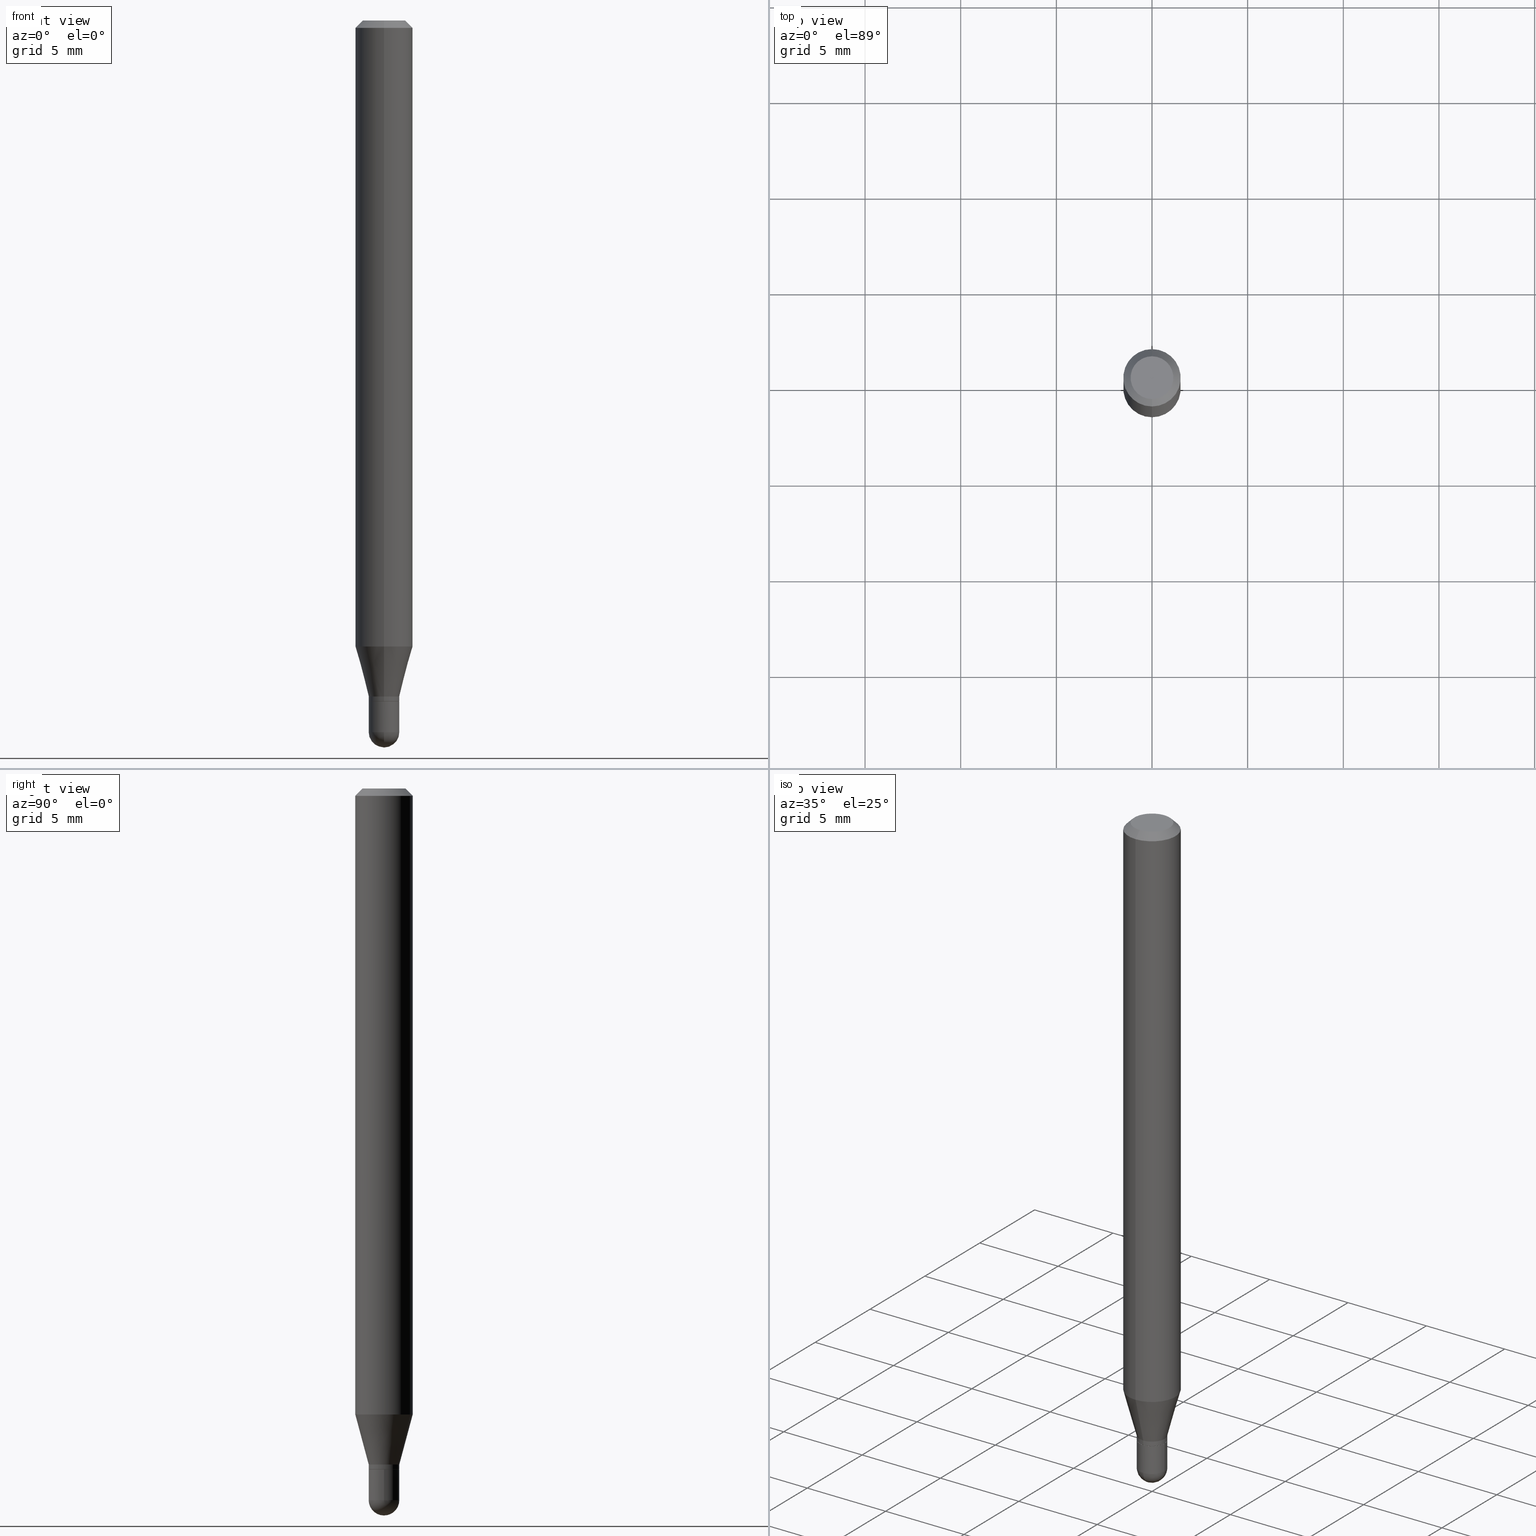
[diagram: canonical four-view strip — front | top / right | iso, engineering-drawing reading convention]
A machine part, canonical four-view strip (front | top / right | iso — engineering-drawing reading convention). The complete STEP part file that produces these views, byte-faithful:
ISO-10303-21;
HEADER;
FILE_DESCRIPTION (( 'STEP AP203' ),
    '1' );
FILE_NAME ('01911.STEP',
    '2024-03-07T19:43:44',
    ( '' ),
    ( '' ),
    'SwSTEP 2.0',
    'SolidWorks 2023',
    '' );
FILE_SCHEMA (( 'CONFIG_CONTROL_DESIGN' ));
ENDSEC;

DATA;
#1 = DATE_AND_TIME ( #427, #207 ) ;
#2 = EDGE_CURVE ( 'NONE', #364, #395, #454, .T. ) ;
#3 = DIRECTION ( 'NONE',  ( -2.445497261081806566E-29, 3.491440589811561722E-15, 1.000000000000000000 ) ) ;
#4 = ORIENTED_EDGE ( 'NONE', *, *, #450, .F. ) ;
#5 = AXIS2_PLACEMENT_3D ( 'NONE', #370, #448, #98 ) ;
#6 = EDGE_LOOP ( 'NONE', ( #215, #486, #161, #17 ) ) ;
#7 = APPROVAL_ROLE ( '' ) ;
#8 = CARTESIAN_POINT ( 'NONE',  ( 3.668245891622715664E-31, -5.237160884717351433E-17, -0.01500000000000002373 ) ) ;
#9 = EDGE_LOOP ( 'NONE', ( #100, #488, #345, #400 ) ) ;
#10 = COORDINATED_UNIVERSAL_TIME_OFFSET ( 5, 0, .BEHIND. ) ;
#11 = FACE_OUTER_BOUND ( 'NONE', #209, .T. ) ;
#12 = EDGE_LOOP ( 'NONE', ( #78, #297, #221, #91, #369 ) ) ;
#13 = VECTOR ( 'NONE', #75, 39.37007874015748854 ) ;
#14 = VECTOR ( 'NONE', #459, 39.37007874015748143 ) ;
#15 = VERTEX_POINT ( 'NONE', #24 ) ;
#16 = APPROVAL ( #393, 'UNSPECIFIED' ) ;
#17 = ORIENTED_EDGE ( 'NONE', *, *, #471, .F. ) ;
#18 = CC_DESIGN_PERSON_AND_ORGANIZATION_ASSIGNMENT ( #492, #179, ( #72 ) ) ;
#19 = AXIS2_PLACEMENT_3D ( 'NONE', #263, #383, #348 ) ;
#20 = CARTESIAN_POINT ( 'NONE',  ( -2.164718430082399417E-16, -0.03100000000000489170, -1.401599999999999957 ) ) ;
#21 = CARTESIAN_POINT ( 'NONE',  ( 3.401931239890901450E-29, -4.856943004486863182E-15, -1.391099999999999781 ) ) ;
#22 = LINE ( 'NONE', #99, #490 ) ;
#23 = DESIGN_CONTEXT ( 'detailed design', #287, 'design' ) ;
#24 = CARTESIAN_POINT ( 'NONE',  ( -4.123439461173736383E-16, -0.05905000000000005383, -0.01499999999999981730 ) ) ;
#25 = COORDINATED_UNIVERSAL_TIME_OFFSET ( 5, 0, .BEHIND. ) ;
#26 = VECTOR ( 'NONE', #191, 39.37007874015748143 ) ;
#27 = DIRECTION ( 'NONE',  ( -6.982962677686265922E-15, -1.000000000000000000, 3.491440589811561328E-15 ) ) ;
#28 = AXIS2_PLACEMENT_3D ( 'NONE', #284, #436, #493 ) ;
#29 = EDGE_CURVE ( 'NONE', #367, #110, #22, .T. ) ;
#30 = CARTESIAN_POINT ( 'NONE',  ( 3.599717260347271507E-16, 0.04404999999999999888, -1.776619958574267450E-16 ) ) ;
#31 = DIRECTION ( 'NONE',  ( -6.982962677686265922E-15, -1.000000000000000000, 0.000000000000000000 ) ) ;
#32 = DIRECTION ( 'NONE',  ( -6.982962677686265922E-15, -1.000000000000000000, 4.626330217890369336E-15 ) ) ;
#33 = DIRECTION ( 'NONE',  ( -6.982962677686265922E-15, -1.000000000000000000, 3.491440589811561328E-15 ) ) ;
#34 = ADVANCED_FACE ( 'NONE', ( #458 ), #182, .T. ) ;
#35 = CARTESIAN_POINT ( 'NONE',  ( 3.427608961132260136E-29, -4.893603130679885204E-15, -1.401599999999999957 ) ) ;
#36 = DIRECTION ( 'NONE',  ( 5.024295867788190974E-15, 0.7071067811865681119, 0.7071067811865270336 ) ) ;
#37 =( GEOMETRIC_REPRESENTATION_CONTEXT ( 3 ) GLOBAL_UNCERTAINTY_ASSIGNED_CONTEXT ( ( #189 ) ) GLOBAL_UNIT_ASSIGNED_CONTEXT ( ( #81, #431, #303 ) ) REPRESENTATION_CONTEXT ( 'NONE', 'WORKASPACE' ) );
#38 = DIRECTION ( 'NONE',  ( 1.000000000000000000, -7.105427357601001070E-15, 4.926315508542082329E-29 ) ) ;
#39 = CARTESIAN_POINT ( 'NONE',  ( 3.426386212501719566E-29, -4.891857410384979356E-15, -1.401100000000000012 ) ) ;
#40 = PERSON_AND_ORGANIZATION ( #267, #302 ) ;
#41 = DIRECTION ( 'NONE',  ( -6.982962677686265133E-15, -1.000000000000000000, 3.491440589811561722E-15 ) ) ;
#42 = DIRECTION ( 'NONE',  ( -6.982962677686265922E-15, -1.000000000000000000, 0.000000000000000000 ) ) ;
#43 = ORIENTED_EDGE ( 'NONE', *, *, #118, .T. ) ;
#44 = VECTOR ( 'NONE', #151, 39.37007874015748143 ) ;
#45 = EDGE_CURVE ( 'NONE', #115, #307, #464, .T. ) ;
#46 = CARTESIAN_POINT ( 'NONE',  ( 0.000000000000000000, 0.000000000000000000, 0.000000000000000000 ) ) ;
#47 = EDGE_LOOP ( 'NONE', ( #248, #43, #167, #261 ) ) ;
#48 = SPHERICAL_SURFACE ( 'NONE', #193, 0.03149999999999982675 ) ;
#49 = DIRECTION ( 'NONE',  ( -2.445497261081806566E-29, 3.491440589811561722E-15, 1.000000000000000000 ) ) ;
#50 = ORIENTED_EDGE ( 'NONE', *, *, #487, .T. ) ;
#51 = APPROVAL_ROLE ( '' ) ;
#52 = EDGE_CURVE ( 'NONE', #307, #115, #135, .T. ) ;
#53 = ORIENTED_EDGE ( 'NONE', *, *, #462, .F. ) ;
#54 = CARTESIAN_POINT ( 'NONE',  ( 3.578939839727836152E-29, -5.117481206286984227E-15, -1.464599999999999902 ) ) ;
#55 = AXIS2_PLACEMENT_3D ( 'NONE', #8, #204, #480 ) ;
#56 = ORIENTED_EDGE ( 'NONE', *, *, #118, .F. ) ;
#57 = ORIENTED_EDGE ( 'NONE', *, *, #52, .T. ) ;
#58 = EDGE_CURVE ( 'NONE', #375, #15, #185, .T. ) ;
#59 = APPLICATION_PROTOCOL_DEFINITION ( 'international standard', 'config_control_design', 1994, #287 ) ;
#60 = CC_DESIGN_SECURITY_CLASSIFICATION ( #136, ( #406 ) ) ;
#61 = PLANE ( 'NONE',  #74 ) ;
#62 = ORIENTED_EDGE ( 'NONE', *, *, #487, .F. ) ;
#63 = DIRECTION ( 'NONE',  ( 7.105427357601001859E-15, 1.000000000000000000, 0.000000000000000000 ) ) ;
#64 = AXIS2_PLACEMENT_3D ( 'NONE', #350, #317, #33 ) ;
#65 = APPROVAL_PERSON_ORGANIZATION ( #438, #409, #51 ) ;
#66 = DIRECTION ( 'NONE',  ( -2.445497261081806566E-29, 3.491440589811561722E-15, 1.000000000000000000 ) ) ;
#67 = ADVANCED_FACE ( 'NONE', ( #286 ), #387, .T. ) ;
#68 = DIRECTION ( 'NONE',  ( -2.445497261081806286E-29, 3.491440589811561722E-15, 1.000000000000000000 ) ) ;
#69 = DIRECTION ( 'NONE',  ( -2.445497261081806566E-29, 3.491440589811561722E-15, 1.000000000000000000 ) ) ;
#70 = ORIENTED_EDGE ( 'NONE', *, *, #376, .T. ) ;
#71 = CARTESIAN_POINT ( 'NONE',  ( -2.164718430082399417E-16, -0.03100000000000489170, -1.401599999999999957 ) ) ;
#72 = PRODUCT ( '01911', '01911', '', ( #496 ) ) ;
#73 = DIRECTION ( 'NONE',  ( -2.445468806185136597E-29, 3.491481338843145583E-15, 1.000000000000000000 ) ) ;
#74 = AXIS2_PLACEMENT_3D ( 'NONE', #411, #469, #377 ) ;
#75 = DIRECTION ( 'NONE',  ( -1.807323732225331323E-15, -0.2588190451025183525, 0.9659258262890689783 ) ) ;
#76 = APPROVAL_DATE_TIME ( #1, #409 ) ;
#77 = FACE_OUTER_BOUND ( 'NONE', #304, .T. ) ;
#78 = ORIENTED_EDGE ( 'NONE', *, *, #452, .T. ) ;
#79 = EDGE_CURVE ( 'NONE', #252, #15, #228, .T. ) ;
#80 = DATE_AND_TIME ( #479, #285 ) ;
#81 =( CONVERSION_BASED_UNIT ( 'INCH', #251 ) LENGTH_UNIT ( ) NAMED_UNIT ( #194 ) );
#82 = DIRECTION ( 'NONE',  ( -6.982962677686265922E-15, -1.000000000000000000, 0.000000000000000000 ) ) ;
#83 = ORIENTED_EDGE ( 'NONE', *, *, #45, .T. ) ;
#84 = DATE_AND_TIME ( #288, #266 ) ;
#85 = CONICAL_SURFACE ( 'NONE', #293, 0.03099999999999999978, 0.7853981633974739252 ) ;
#86 = CARTESIAN_POINT ( 'NONE',  ( 3.427608961132260136E-29, -4.893603130679885204E-15, -1.401599999999999957 ) ) ;
#87 = ORIENTED_EDGE ( 'NONE', *, *, #447, .F. ) ;
#88 = APPROVAL_STATUS ( 'not_yet_approved' ) ;
#89 = EDGE_CURVE ( 'NONE', #307, #252, #353, .T. ) ;
#90 = DIRECTION ( 'NONE',  ( -2.445497261081806566E-29, 3.491440589811561722E-15, 1.000000000000000000 ) ) ;
#91 = ORIENTED_EDGE ( 'NONE', *, *, #484, .F. ) ;
#92 = DIRECTION ( 'NONE',  ( -2.445468806185136597E-29, 3.491481338843145583E-15, 1.000000000000000000 ) ) ;
#93 = EDGE_LOOP ( 'NONE', ( #231, #210, #70, #334 ) ) ;
#94 = CIRCLE ( 'NONE', #378, 0.03150000000000000716 ) ;
#95 = CALENDAR_DATE ( 2024, 7, 3 ) ;
#96 = CIRCLE ( 'NONE', #108, 0.03150000000000000716 ) ;
#97 = ORIENTED_EDGE ( 'NONE', *, *, #89, .T. ) ;
#98 = DIRECTION ( 'NONE',  ( 1.000000000000000000, 0.000000000000000000, 0.000000000000000000 ) ) ;
#99 = CARTESIAN_POINT ( 'NONE',  ( 4.195754854663390985E-16, 0.05904999999999999832, -2.061695668283727093E-16 ) ) ;
#100 = ORIENTED_EDGE ( 'NONE', *, *, #128, .T. ) ;
#101 = VECTOR ( 'NONE', #177, 39.37007874015748143 ) ;
#102 = VECTOR ( 'NONE', #342, 39.37007874015748143 ) ;
#103 = ORIENTED_EDGE ( 'NONE', *, *, #273, .F. ) ;
#104 = ADVANCED_FACE ( 'NONE', ( #425 ), #384, .T. ) ;
#105 = DIRECTION ( 'NONE',  ( 1.000000000000000000, -6.982962677686265922E-15, 4.883557194083112340E-29 ) ) ;
#106 = APPLICATION_CONTEXT ( 'configuration controlled 3d designs of mechanical parts and assemblies' ) ;
#107 = DIRECTION ( 'NONE',  ( -2.445468806185136597E-29, 3.491481338843145583E-15, 1.000000000000000000 ) ) ;
#108 = AXIS2_PLACEMENT_3D ( 'NONE', #316, #232, #154 ) ;
#109 = CARTESIAN_POINT ( 'NONE',  ( 0.000000000000000000, 0.000000000000000000, 0.000000000000000000 ) ) ;
#110 = VERTEX_POINT ( 'NONE', #509 ) ;
#111 = ADVANCED_FACE ( 'NONE', ( #505 ), #239, .T. ) ;
#112 = DATE_AND_TIME ( #95, #123 ) ;
#113 = DIRECTION ( 'NONE',  ( 6.982962677686265922E-15, 1.000000000000000000, -3.491440589811561722E-15 ) ) ;
#114 = DIRECTION ( 'NONE',  ( 1.000000000000000000, -6.982962677686254878E-15, 0.000000000000000000 ) ) ;
#115 = VERTEX_POINT ( 'NONE', #152 ) ;
#116 = CARTESIAN_POINT ( 'NONE',  ( 3.654625220217210352E-29, -5.229391687169200303E-15, -1.496099999999999985 ) ) ;
#117 = DIRECTION ( 'NONE',  ( 2.445497261081806566E-29, -3.491440589811561722E-15, -1.000000000000000000 ) ) ;
#118 = EDGE_CURVE ( 'NONE', #240, #172, #413, .T. ) ;
#119 = DIRECTION ( 'NONE',  ( 2.445497261081806566E-29, -3.491440589811561722E-15, -1.000000000000000000 ) ) ;
#120 = AXIS2_PLACEMENT_3D ( 'NONE', #449, #489, #217 ) ;
#121 = DIRECTION ( 'NONE',  ( 1.000000000000000000, -6.982962677686255667E-15, 0.000000000000000000 ) ) ;
#122 = AXIS2_PLACEMENT_3D ( 'NONE', #269, #105, #142 ) ;
#123 = LOCAL_TIME ( 14, 43, 44.00000000000000000, #25 ) ;
#124 = PRODUCT_DEFINITION ( 'UNKNOWN', '', #406, #23 ) ;
#125 = COORDINATED_UNIVERSAL_TIME_OFFSET ( 5, 0, .BEHIND. ) ;
#126 = ORIENTED_EDGE ( 'NONE', *, *, #351, .F. ) ;
#127 = ORIENTED_EDGE ( 'NONE', *, *, #58, .F. ) ;
#128 = EDGE_CURVE ( 'NONE', #395, #172, #475, .T. ) ;
#129 = PERSON_AND_ORGANIZATION_ROLE ( 'design_supplier' ) ;
#130 = AXIS2_PLACEMENT_3D ( 'NONE', #146, #314, #463 ) ;
#131 = FACE_OUTER_BOUND ( 'NONE', #6, .T. ) ;
#132 = ORIENTED_EDGE ( 'NONE', *, *, #447, .T. ) ;
#133 = ORIENTED_EDGE ( 'NONE', *, *, #462, .T. ) ;
#134 = APPLICATION_PROTOCOL_DEFINITION ( 'international standard', 'config_control_design', 1994, #106 ) ;
#135 = CIRCLE ( 'NONE', #245, 0.03149999999999991696 ) ;
#136 = SECURITY_CLASSIFICATION ( '', '', #354 ) ;
#137 = PRODUCT_RELATED_PRODUCT_CATEGORY ( 'detail', '', ( #72 ) ) ;
#138 = AXIS2_PLACEMENT_3D ( 'NONE', #109, #73, #198 ) ;
#139 = CIRCLE ( 'NONE', #19, 0.03150000000000000022 ) ;
#140 = DIRECTION ( 'NONE',  ( -2.445497261081806286E-29, 3.491440589811561722E-15, 1.000000000000000000 ) ) ;
#141 = APPROVAL_DATE_TIME ( #112, #280 ) ;
#142 = DIRECTION ( 'NONE',  ( -6.982962677686265922E-15, -1.000000000000000000, 0.000000000000000000 ) ) ;
#143 = CARTESIAN_POINT ( 'NONE',  ( -4.051124067684085231E-16, -0.05905000000000005383, -0.01499999999999981730 ) ) ;
#144 = EDGE_CURVE ( 'NONE', #214, #300, #320, .T. ) ;
#145 = DIRECTION ( 'NONE',  ( -6.982962677686265922E-15, -1.000000000000000000, 3.491440589811561722E-15 ) ) ;
#146 = CARTESIAN_POINT ( 'NONE',  ( 3.427608961132260136E-29, -4.893603130679885204E-15, -1.401599999999999957 ) ) ;
#147 = ORIENTED_EDGE ( 'NONE', *, *, #450, .T. ) ;
#148 = AXIS2_PLACEMENT_3D ( 'NONE', #35, #501, #145 ) ;
#149 = CC_DESIGN_APPROVAL ( #280, ( #124 ) ) ;
#150 = CARTESIAN_POINT ( 'NONE',  ( 3.581633613538751591E-29, -5.113623568869670202E-15, -1.464599999999999902 ) ) ;
#151 = DIRECTION ( 'NONE',  ( -2.445497261081806286E-29, 3.491440589811561722E-15, 1.000000000000000000 ) ) ;
#152 = CARTESIAN_POINT ( 'NONE',  ( 3.216982236154178205E-16, 0.03149999999999505973, -1.391099999999999781 ) ) ;
#153 = EDGE_LOOP ( 'NONE', ( #294, #361, #270, #397 ) ) ;
#154 = DIRECTION ( 'NONE',  ( 1.000000000000000000, -6.982962677686254878E-15, 0.000000000000000000 ) ) ;
#155 = CARTESIAN_POINT ( 'NONE',  ( 3.581633613538751591E-29, -5.113623568869670202E-15, -1.464599999999999902 ) ) ;
#156 = CALENDAR_DATE ( 2024, 7, 3 ) ;
#157 = EDGE_CURVE ( 'NONE', #206, #292, #94, .T. ) ;
#158 = FACE_OUTER_BOUND ( 'NONE', #153, .T. ) ;
#159 = CIRCLE ( 'NONE', #339, 0.04404999999999999888 ) ;
#160 =( LENGTH_UNIT ( ) NAMED_UNIT ( * ) SI_UNIT ( $, .METRE. ) );
#161 = ORIENTED_EDGE ( 'NONE', *, *, #157, .F. ) ;
#162 = PERSON_AND_ORGANIZATION ( #267, #302 ) ;
#163 = DIRECTION ( 'NONE',  ( -6.982962677686265922E-15, -1.000000000000000000, 0.000000000000000000 ) ) ;
#164 = ADVANCED_FACE ( 'NONE', ( #502 ), #391, .T. ) ;
#165 = ORIENTED_EDGE ( 'NONE', *, *, #79, .F. ) ;
#166 = DIRECTION ( 'NONE',  ( -6.982962677686265922E-15, -1.000000000000000000, 3.505890868245046092E-15 ) ) ;
#167 = ORIENTED_EDGE ( 'NONE', *, *, #128, .F. ) ;
#168 = CIRCLE ( 'NONE', #415, 0.03149999999999992389 ) ;
#169 = PERSON_AND_ORGANIZATION ( #267, #302 ) ;
#170 = CIRCLE ( 'NONE', #308, 0.05904999999999999832 ) ;
#171 = ORIENTED_EDGE ( 'NONE', *, *, #2, .T. ) ;
#172 = VERTEX_POINT ( 'NONE', #276 ) ;
#173 = EDGE_CURVE ( 'NONE', #364, #240, #222, .T. ) ;
#174 = CARTESIAN_POINT ( 'NONE',  ( 3.150490103115979382E-29, -4.497960066801637033E-15, -1.288282000251477433 ) ) ;
#175 = EDGE_LOOP ( 'NONE', ( #259, #407, #429, #211, #4 ) ) ;
#176 = AXIS2_PLACEMENT_3D ( 'NONE', #155, #470, #114 ) ;
#177 = DIRECTION ( 'NONE',  ( -4.937700262164674260E-15, -0.7071067811865632269, 0.7071067811865319186 ) ) ;
#178 = DIRECTION ( 'NONE',  ( -2.445497261081806566E-29, 3.491440589811561722E-15, 1.000000000000000000 ) ) ;
#179 = PERSON_AND_ORGANIZATION_ROLE ( 'design_owner' ) ;
#180 = ORIENTED_EDGE ( 'NONE', *, *, #399, .T. ) ;
#181 = CC_DESIGN_DATE_AND_TIME_ASSIGNMENT ( #430, #360, ( #124 ) ) ;
#182 = CONICAL_SURFACE ( 'NONE', #120, 0.03149999999999991696, 0.2617993877991504625 ) ;
#183 = CONICAL_SURFACE ( 'NONE', #315, 0.03149999999999991696, 0.2617993877991504625 ) ;
#184 = LINE ( 'NONE', #311, #14 ) ;
#185 = LINE ( 'NONE', #143, #102 ) ;
#186 = FACE_OUTER_BOUND ( 'NONE', #326, .T. ) ;
#187 = DIRECTION ( 'NONE',  ( -2.445468806185136597E-29, 3.491481338843145583E-15, 1.000000000000000000 ) ) ;
#188 = ORIENTED_EDGE ( 'NONE', *, *, #262, .T. ) ;
#189 = UNCERTAINTY_MEASURE_WITH_UNIT (LENGTH_MEASURE( 1.000000000000000082E-05 ), #81, 'distance_accuracy_value', 'NONE');
#190 = CARTESIAN_POINT ( 'NONE',  ( 3.075995059520799729E-16, 0.04404999999999999888, -1.657299769193130162E-16 ) ) ;
#191 = DIRECTION ( 'NONE',  ( -2.445468806185136877E-29, 3.491481338843145188E-15, 1.000000000000000000 ) ) ;
#192 = PLANE ( 'NONE',  #476 ) ;
#193 = AXIS2_PLACEMENT_3D ( 'NONE', #54, #434, #163 ) ;
#194 = DIMENSIONAL_EXPONENTS ( 1.000000000000000000, 0.000000000000000000, 0.000000000000000000, 0.000000000000000000, 0.000000000000000000, 0.000000000000000000, 0.000000000000000000 ) ;
#195 = DIRECTION ( 'NONE',  ( -6.982962677686265922E-15, -1.000000000000000000, 0.000000000000000000 ) ) ;
#196 = ORIENTED_EDGE ( 'NONE', *, *, #414, .F. ) ;
#197 = LINE ( 'NONE', #352, #338 ) ;
#198 = DIRECTION ( 'NONE',  ( 1.000000000000000000, -6.982962677686265133E-15, 4.876176775795935793E-29 ) ) ;
#199 = CC_DESIGN_PERSON_AND_ORGANIZATION_ASSIGNMENT ( #40, #441, ( #124 ) ) ;
#200 = PERSON_AND_ORGANIZATION_ROLE ( 'creator' ) ;
#201 = CARTESIAN_POINT ( 'NONE',  ( 0.03150000000000000022, -5.113623568869669413E-15, -1.401599999999999957 ) ) ;
#202 = EDGE_LOOP ( 'NONE', ( #426, #372 ) ) ;
#203 = SHAPE_DEFINITION_REPRESENTATION ( #401, #443 ) ;
#204 = DIRECTION ( 'NONE',  ( -2.445497261081806566E-29, 3.491440589811561722E-15, 1.000000000000000000 ) ) ;
#205 = AXIS2_PLACEMENT_3D ( 'NONE', #313, #419, #27 ) ;
#206 = VERTEX_POINT ( 'NONE', #347 ) ;
#207 = LOCAL_TIME ( 14, 43, 44.00000000000000000, #331 ) ;
#208 = DIRECTION ( 'NONE',  ( -2.445497261081806566E-29, 3.491440589811561722E-15, 1.000000000000000000 ) ) ;
#209 = EDGE_LOOP ( 'NONE', ( #478, #216, #62, #165 ) ) ;
#210 = ORIENTED_EDGE ( 'NONE', *, *, #257, .T. ) ;
#211 = ORIENTED_EDGE ( 'NONE', *, *, #484, .T. ) ;
#212 = AXIS2_PLACEMENT_3D ( 'NONE', #381, #107, #225 ) ;
#213 = LINE ( 'NONE', #368, #423 ) ;
#214 = VERTEX_POINT ( 'NONE', #468 ) ;
#215 = ORIENTED_EDGE ( 'NONE', *, *, #466, .F. ) ;
#216 = ORIENTED_EDGE ( 'NONE', *, *, #29, .T. ) ;
#217 = DIRECTION ( 'NONE',  ( -6.982962677686266711E-15, -1.000000000000000000, 0.000000000000000000 ) ) ;
#218 = AXIS2_PLACEMENT_3D ( 'NONE', #396, #92, #256 ) ;
#219 = EDGE_CURVE ( 'NONE', #214, #329, #358, .T. ) ;
#220 = DIRECTION ( 'NONE',  ( -2.445497261081806566E-29, 3.491440589811561722E-15, 1.000000000000000000 ) ) ;
#221 = ORIENTED_EDGE ( 'NONE', *, *, #243, .F. ) ;
#222 = CIRCLE ( 'NONE', #130, 0.03099999999999999978 ) ;
#223 = CIRCLE ( 'NONE', #218, 0.03150000000000000716 ) ;
#224 = CYLINDRICAL_SURFACE ( 'NONE', #205, 0.03149999999999992389 ) ;
#225 = DIRECTION ( 'NONE',  ( 1.000000000000000000, -6.982962677686265133E-15, 4.876176775795935793E-29 ) ) ;
#226 = DIRECTION ( 'NONE',  ( -2.445497261081806566E-29, 3.491440589811561722E-15, 1.000000000000000000 ) ) ;
#227 = ADVANCED_FACE ( 'NONE', ( #278 ), #456, .T. ) ;
#228 = LINE ( 'NONE', #422, #233 ) ;
#229 = CARTESIAN_POINT ( 'NONE',  ( 2.238209617644309685E-16, 0.03149999999999992389, -1.099803785790639197E-16 ) ) ;
#230 = DIRECTION ( 'NONE',  ( -2.445497261081806286E-29, 3.491440589811561722E-15, 1.000000000000000000 ) ) ;
#231 = ORIENTED_EDGE ( 'NONE', *, *, #382, .F. ) ;
#232 = DIRECTION ( 'NONE',  ( -2.445468806185136597E-29, 3.491481338843145583E-15, 1.000000000000000000 ) ) ;
#233 = VECTOR ( 'NONE', #230, 39.37007874015748143 ) ;
#234 = AXIS2_PLACEMENT_3D ( 'NONE', #282, #238, #121 ) ;
#235 = CC_DESIGN_PERSON_AND_ORGANIZATION_ASSIGNMENT ( #398, #253, ( #136 ) ) ;
#236 = CARTESIAN_POINT ( 'NONE',  ( 3.578939839727836152E-29, -5.117481206286984227E-15, -1.464599999999999902 ) ) ;
#237 = LOCAL_TIME ( 14, 43, 44.00000000000000000, #125 ) ;
#238 = DIRECTION ( 'NONE',  ( -2.445468806185136597E-29, 3.491481338843145583E-15, 1.000000000000000000 ) ) ;
#239 = CYLINDRICAL_SURFACE ( 'NONE', #212, 0.03150000000000000716 ) ;
#240 = VERTEX_POINT ( 'NONE', #473 ) ;
#241 = DIRECTION ( 'NONE',  ( -2.445468806185136877E-29, 3.491481338843145188E-15, 1.000000000000000000 ) ) ;
#242 = ORIENTED_EDGE ( 'NONE', *, *, #399, .F. ) ;
#243 = EDGE_CURVE ( 'NONE', #290, #300, #405, .T. ) ;
#244 = DIRECTION ( 'NONE',  ( -1.000000000000000000, 6.982962677686265922E-15, -4.883557194083112340E-29 ) ) ;
#245 = AXIS2_PLACEMENT_3D ( 'NONE', #457, #69, #500 ) ;
#246 = CARTESIAN_POINT ( 'NONE',  ( -0.03150000000000000022, -4.779820944931679381E-15, -1.401599999999999957 ) ) ;
#247 = CIRCLE ( 'NONE', #55, 0.05904999999999999832 ) ;
#248 = ORIENTED_EDGE ( 'NONE', *, *, #173, .T. ) ;
#249 = APPROVAL_PERSON_ORGANIZATION ( #374, #280, #410 ) ;
#250 = COORDINATED_UNIVERSAL_TIME_OFFSET ( 5, 0, .BEHIND. ) ;
#251 = LENGTH_MEASURE_WITH_UNIT ( LENGTH_MEASURE( 0.02539999999999999897 ), #160 );
#252 = VERTEX_POINT ( 'NONE', #390 ) ;
#253 = PERSON_AND_ORGANIZATION_ROLE ( 'classification_officer' ) ;
#254 = CARTESIAN_POINT ( 'NONE',  ( 2.238209617644667630E-16, 0.03149999999999480299, -1.464599999999999902 ) ) ;
#255 = EDGE_LOOP ( 'NONE', ( #333, #132, #503, #53 ) ) ;
#256 = DIRECTION ( 'NONE',  ( 1.000000000000000000, -6.982962677686254878E-15, 0.000000000000000000 ) ) ;
#257 = EDGE_CURVE ( 'NONE', #172, #395, #168, .T. ) ;
#258 = CYLINDRICAL_SURFACE ( 'NONE', #388, 0.05904999999999999832 ) ;
#259 = ORIENTED_EDGE ( 'NONE', *, *, #144, .F. ) ;
#260 = AXIS2_PLACEMENT_3D ( 'NONE', #418, #66, #195 ) ;
#261 = ORIENTED_EDGE ( 'NONE', *, *, #2, .F. ) ;
#262 = EDGE_CURVE ( 'NONE', #240, #364, #491, .T. ) ;
#263 = CARTESIAN_POINT ( 'NONE',  ( 3.427569078749087191E-29, -4.893660244522552864E-15, -1.401599999999999957 ) ) ;
#264 = AXIS2_PLACEMENT_3D ( 'NONE', #21, #178, #495 ) ;
#265 = CONICAL_SURFACE ( 'NONE', #324, 0.05904999999999999832, 0.7853981633974483900 ) ;
#266 = LOCAL_TIME ( 14, 43, 44.00000000000000000, #10 ) ;
#267 = PERSON ( 'UNSPECIFIED', 'UNSPECIFIED', 'UNSPECIFIED', ('UNSPECIFIED'), ('UNSPECIFIED'), ('UNSPECIFIED') ) ;
#268 = APPROVAL_STATUS ( 'not_yet_approved' ) ;
#269 = CARTESIAN_POINT ( 'NONE',  ( 3.578939839727836152E-29, -5.117481206286984227E-15, -1.464599999999999902 ) ) ;
#270 = ORIENTED_EDGE ( 'NONE', *, *, #219, .F. ) ;
#271 = CARTESIAN_POINT ( 'NONE',  ( 3.427608961132260136E-29, -4.893603130679885204E-15, -1.401599999999999957 ) ) ;
#272 = VECTOR ( 'NONE', #68, 39.37007874015748143 ) ;
#273 = EDGE_CURVE ( 'NONE', #356, #375, #159, .T. ) ;
#274 = CC_DESIGN_APPROVAL ( #409, ( #136 ) ) ;
#275 = CARTESIAN_POINT ( 'NONE',  ( 3.401931239890901450E-29, -4.856943004486863182E-15, -1.391099999999999781 ) ) ;
#276 = CARTESIAN_POINT ( 'NONE',  ( 2.238209617644644458E-16, 0.03149999999999492789, -1.401100000000000012 ) ) ;
#277 = CARTESIAN_POINT ( 'NONE',  ( -2.199633243470810260E-16, -0.03150000000000503786, -1.464599999999999902 ) ) ;
#278 = FACE_OUTER_BOUND ( 'NONE', #306, .T. ) ;
#279 = ORIENTED_EDGE ( 'NONE', *, *, #243, .T. ) ;
#280 = APPROVAL ( #268, 'UNSPECIFIED' ) ;
#281 = DIRECTION ( 'NONE',  ( 6.982962677686265922E-15, 1.000000000000000000, -3.505890868245046092E-15 ) ) ;
#282 = CARTESIAN_POINT ( 'NONE',  ( 3.427569078749087191E-29, -4.893660244522552864E-15, -1.401599999999999957 ) ) ;
#283 = AXIS2_PLACEMENT_3D ( 'NONE', #86, #363, #299 ) ;
#284 = CARTESIAN_POINT ( 'NONE',  ( 5.835943926466671869E-46, -8.331987047786100818E-32, -2.386403787622744840E-17 ) ) ;
#285 = LOCAL_TIME ( 14, 43, 44.00000000000000000, #250 ) ;
#286 = FACE_OUTER_BOUND ( 'NONE', #47, .T. ) ;
#287 = APPLICATION_CONTEXT ( 'configuration controlled 3d designs of mechanical parts and assemblies' ) ;
#288 = CALENDAR_DATE ( 2024, 7, 3 ) ;
#289 = CYLINDRICAL_SURFACE ( 'NONE', #507, 0.05904999999999999832 ) ;
#290 = VERTEX_POINT ( 'NONE', #201 ) ;
#291 = DIRECTION ( 'NONE',  ( 1.839019923739601499E-15, 0.2588190451025251249, 0.9659258262890670910 ) ) ;
#292 = VERTEX_POINT ( 'NONE', #254 ) ;
#293 = AXIS2_PLACEMENT_3D ( 'NONE', #394, #208, #42 ) ;
#294 = ORIENTED_EDGE ( 'NONE', *, *, #335, .F. ) ;
#295 = DATE_TIME_ROLE ( 'classification_date' ) ;
#296 = DIRECTION ( 'NONE',  ( -6.982962677686265922E-15, -1.000000000000000000, 3.491440589811561722E-15 ) ) ;
#297 = ORIENTED_EDGE ( 'NONE', *, *, #144, .T. ) ;
#298 = ADVANCED_FACE ( 'NONE', ( #355 ), #258, .T. ) ;
#299 = DIRECTION ( 'NONE',  ( -6.982962677686265922E-15, -1.000000000000000000, 0.000000000000000000 ) ) ;
#300 = VERTEX_POINT ( 'NONE', #246 ) ;
#301 = CIRCLE ( 'NONE', #446, 0.05904999999999999832 ) ;
#302 = ORGANIZATION ( 'UNSPECIFIED', 'UNSPECIFIED', '' ) ;
#303 =( NAMED_UNIT ( * ) SI_UNIT ( $, .STERADIAN. ) SOLID_ANGLE_UNIT ( ) );
#304 = EDGE_LOOP ( 'NONE', ( #56, #188, #171, #440 ) ) ;
#305 = CC_DESIGN_PERSON_AND_ORGANIZATION_ASSIGNMENT ( #169, #200, ( #406 ) ) ;
#306 = EDGE_LOOP ( 'NONE', ( #127, #103, #510, #133 ) ) ;
#307 = VERTEX_POINT ( 'NONE', #366 ) ;
#308 = AXIS2_PLACEMENT_3D ( 'NONE', #174, #220, #336 ) ;
#309 = CC_DESIGN_APPROVAL ( #16, ( #406 ) ) ;
#310 = ADVANCED_FACE ( 'NONE', ( #158 ), #341, .T. ) ;
#311 = CARTESIAN_POINT ( 'NONE',  ( 4.123439461173743285E-16, 0.05904999999999994975, -0.01500000000000023016 ) ) ;
#312 = DIRECTION ( 'NONE',  ( -2.445497261081806566E-29, 3.491440589811561722E-15, 1.000000000000000000 ) ) ;
#313 = CARTESIAN_POINT ( 'NONE',  ( 0.000000000000000000, 0.000000000000000000, 0.000000000000000000 ) ) ;
#314 = DIRECTION ( 'NONE',  ( -2.445497261081806566E-29, 3.491440589811561722E-15, 1.000000000000000000 ) ) ;
#315 = AXIS2_PLACEMENT_3D ( 'NONE', #275, #226, #472 ) ;
#316 = CARTESIAN_POINT ( 'NONE',  ( 3.581633613538751591E-29, -5.113623568869670202E-15, -1.464599999999999902 ) ) ;
#317 = DIRECTION ( 'NONE',  ( -2.445497261081806566E-29, 3.491440589811561722E-15, 1.000000000000000000 ) ) ;
#318 = ADVANCED_FACE ( 'NONE', ( #499 ), #183, .T. ) ;
#319 = CARTESIAN_POINT ( 'NONE',  ( 3.668245891622715664E-31, -5.237160884717351433E-17, -0.01500000000000002373 ) ) ;
#320 = LINE ( 'NONE', #386, #26 ) ;
#321 = CARTESIAN_POINT ( 'NONE',  ( 3.668245891622715664E-31, -5.237160884717351433E-17, -0.01500000000000002373 ) ) ;
#322 = FACE_OUTER_BOUND ( 'NONE', #93, .T. ) ;
#323 = CARTESIAN_POINT ( 'NONE',  ( 3.668245891622715664E-31, -5.237160884717351433E-17, -0.01500000000000002373 ) ) ;
#324 = AXIS2_PLACEMENT_3D ( 'NONE', #319, #117, #281 ) ;
#325 = EDGE_LOOP ( 'NONE', ( #196, #432, #50, #126 ) ) ;
#326 = EDGE_LOOP ( 'NONE', ( #474, #485 ) ) ;
#327 = DIRECTION ( 'NONE',  ( -2.445497261081806566E-29, 3.491440589811561722E-15, 1.000000000000000000 ) ) ;
#328 = CLOSED_SHELL ( 'NONE', ( #164, #67, #392, #494, #34, #318, #298, #227, #371, #362, #511, #337 ) ) ;
#329 = VERTEX_POINT ( 'NONE', #277 ) ;
#330 = ADVANCED_FACE ( 'NONE', ( #412 ), #61, .F. ) ;
#331 = COORDINATED_UNIVERSAL_TIME_OFFSET ( 5, 0, .BEHIND. ) ;
#332 = MANIFOLD_SOLID_BREP ( 'Body-Move/Copy2[2]', #328 ) ;
#333 = ORIENTED_EDGE ( 'NONE', *, *, #29, .F. ) ;
#334 = ORIENTED_EDGE ( 'NONE', *, *, #45, .F. ) ;
#335 = EDGE_CURVE ( 'NONE', #403, #292, #373, .T. ) ;
#336 = DIRECTION ( 'NONE',  ( -6.982962677686265922E-15, -1.000000000000000000, 4.626330217890369336E-15 ) ) ;
#337 = ADVANCED_FACE ( 'NONE', ( #322 ), #224, .T. ) ;
#338 = VECTOR ( 'NONE', #291, 39.37007874015748854 ) ;
#339 = AXIS2_PLACEMENT_3D ( 'NONE', #439, #90, #41 ) ;
#340 = EDGE_CURVE ( 'NONE', #252, #367, #301, .T. ) ;
#341 = SPHERICAL_SURFACE ( 'NONE', #122, 0.03149999999999982675 ) ;
#342 = DIRECTION ( 'NONE',  ( -4.851104656540964275E-15, -0.7071067811865500152, -0.7071067811865450192 ) ) ;
#343 = PLANE ( 'NONE',  #148 ) ;
#344 = DIRECTION ( 'NONE',  ( 1.000000000000000000, -6.982962677686254878E-15, 0.000000000000000000 ) ) ;
#345 = ORIENTED_EDGE ( 'NONE', *, *, #52, .F. ) ;
#346 = DIRECTION ( 'NONE',  ( 2.445497261081806566E-29, -3.491440589811561722E-15, -1.000000000000000000 ) ) ;
#347 = CARTESIAN_POINT ( 'NONE',  ( 0.03150000000000001410, -5.223605231043228871E-15, -1.464599999999999902 ) ) ;
#348 = DIRECTION ( 'NONE',  ( 1.000000000000000000, -6.982962677686255667E-15, 0.000000000000000000 ) ) ;
#349 = CARTESIAN_POINT ( 'NONE',  ( -2.199633243471168452E-16, -0.03149999999999992389, 1.099803785790639197E-16 ) ) ;
#350 = CARTESIAN_POINT ( 'NONE',  ( 0.000000000000000000, 0.000000000000000000, 0.000000000000000000 ) ) ;
#351 = EDGE_CURVE ( 'NONE', #356, #110, #184, .T. ) ;
#352 = CARTESIAN_POINT ( 'NONE',  ( 2.238209617644649881E-16, 0.03149999999999505973, -1.391099999999999781 ) ) ;
#353 = LINE ( 'NONE', #460, #13 ) ;
#354 = SECURITY_CLASSIFICATION_LEVEL ( 'unclassified' ) ;
#355 = FACE_OUTER_BOUND ( 'NONE', #255, .T. ) ;
#356 = VERTEX_POINT ( 'NONE', #30 ) ;
#357 = CC_DESIGN_PERSON_AND_ORGANIZATION_ASSIGNMENT ( #162, #129, ( #406 ) ) ;
#358 = CIRCLE ( 'NONE', #176, 0.03150000000000000716 ) ;
#359 = ORIENTED_EDGE ( 'NONE', *, *, #89, .F. ) ;
#360 = DATE_TIME_ROLE ( 'creation_date' ) ;
#361 = ORIENTED_EDGE ( 'NONE', *, *, #466, .T. ) ;
#362 = ADVANCED_FACE ( 'NONE', ( #186 ), #343, .F. ) ;
#363 = DIRECTION ( 'NONE',  ( -2.445497261081806566E-29, 3.491440589811561722E-15, 1.000000000000000000 ) ) ;
#364 = VERTEX_POINT ( 'NONE', #71 ) ;
#365 = AXIS2_PLACEMENT_3D ( 'NONE', #236, #38, #63 ) ;
#366 = CARTESIAN_POINT ( 'NONE',  ( -2.199633243470827763E-16, -0.03150000000000477418, -1.391099999999999781 ) ) ;
#367 = VERTEX_POINT ( 'NONE', #461 ) ;
#368 = CARTESIAN_POINT ( 'NONE',  ( 0.03150000000000000716, -2.199633243471174122E-16, 1.535995684375720062E-30 ) ) ;
#369 = ORIENTED_EDGE ( 'NONE', *, *, #157, .T. ) ;
#370 = CARTESIAN_POINT ( 'NONE',  ( 0.000000000000000000, 0.000000000000000000, 0.000000000000000000 ) ) ;
#371 = ADVANCED_FACE ( 'NONE', ( #385 ), #192, .F. ) ;
#372 = ORIENTED_EDGE ( 'NONE', *, *, #414, .T. ) ;
#373 = CIRCLE ( 'NONE', #365, 0.03149999999999982675 ) ;
#374 = PERSON_AND_ORGANIZATION ( #267, #302 ) ;
#375 = VERTEX_POINT ( 'NONE', #504 ) ;
#376 = EDGE_CURVE ( 'NONE', #395, #307, #467, .T. ) ;
#377 = DIRECTION ( 'NONE',  ( -1.000000000000000000, 6.982962677686265922E-15, -4.876176775795935793E-29 ) ) ;
#378 = AXIS2_PLACEMENT_3D ( 'NONE', #150, #187, #344 ) ;
#379 = CIRCLE ( 'NONE', #465, 0.05904999999999999832 ) ;
#380 = CARTESIAN_POINT ( 'NONE',  ( 3.150490103115979382E-29, -4.497960066801637033E-15, -1.288282000251477433 ) ) ;
#381 = CARTESIAN_POINT ( 'NONE',  ( 0.000000000000000000, 0.000000000000000000, 0.000000000000000000 ) ) ;
#382 = EDGE_CURVE ( 'NONE', #172, #115, #508, .T. ) ;
#383 = DIRECTION ( 'NONE',  ( -2.445468806185136597E-29, 3.491481338843145583E-15, 1.000000000000000000 ) ) ;
#384 = CYLINDRICAL_SURFACE ( 'NONE', #138, 0.03150000000000000716 ) ;
#385 = FACE_OUTER_BOUND ( 'NONE', #202, .T. ) ;
#386 = CARTESIAN_POINT ( 'NONE',  ( -0.03150000000000000716, 2.238209617644316094E-16, -1.549464553430295502E-30 ) ) ;
#387 = CONICAL_SURFACE ( 'NONE', #453, 0.03099999999999999978, 0.7853981633974739252 ) ;
#388 = AXIS2_PLACEMENT_3D ( 'NONE', #444, #3, #402 ) ;
#389 = FACE_OUTER_BOUND ( 'NONE', #325, .T. ) ;
#390 = CARTESIAN_POINT ( 'NONE',  ( -4.123439461173426755E-16, -0.05905000000000452248, -1.288282000251476989 ) ) ;
#391 = CYLINDRICAL_SURFACE ( 'NONE', #64, 0.03149999999999992389 ) ;
#392 = ADVANCED_FACE ( 'NONE', ( #389 ), #265, .T. ) ;
#393 = APPROVAL_STATUS ( 'not_yet_approved' ) ;
#394 = CARTESIAN_POINT ( 'NONE',  ( 3.427608961132260136E-29, -4.893603130679885204E-15, -1.401599999999999957 ) ) ;
#395 = VERTEX_POINT ( 'NONE', #421 ) ;
#396 = CARTESIAN_POINT ( 'NONE',  ( 3.581633613538751591E-29, -5.113623568869670202E-15, -1.464599999999999902 ) ) ;
#397 = ORIENTED_EDGE ( 'NONE', *, *, #452, .F. ) ;
#398 = PERSON_AND_ORGANIZATION ( #267, #302 ) ;
#399 = EDGE_CURVE ( 'NONE', #115, #367, #197, .T. ) ;
#400 = ORIENTED_EDGE ( 'NONE', *, *, #376, .F. ) ;
#401 = PRODUCT_DEFINITION_SHAPE ( 'NONE', 'NONE',  #124 ) ;
#402 = DIRECTION ( 'NONE',  ( -6.982962677686265922E-15, -1.000000000000000000, 3.491440589811561722E-15 ) ) ;
#403 = VERTEX_POINT ( 'NONE', #116 ) ;
#404 = VECTOR ( 'NONE', #36, 39.37007874015748143 ) ;
#405 = CIRCLE ( 'NONE', #234, 0.03150000000000000022 ) ;
#406 = PRODUCT_DEFINITION_FORMATION_WITH_SPECIFIED_SOURCE ( 'ANY', '', #72, .NOT_KNOWN. ) ;
#407 = ORIENTED_EDGE ( 'NONE', *, *, #219, .T. ) ;
#408 = CIRCLE ( 'NONE', #435, 0.03149999999999982675 ) ;
#409 = APPROVAL ( #88, 'UNSPECIFIED' ) ;
#410 = APPROVAL_ROLE ( '' ) ;
#411 = CARTESIAN_POINT ( 'NONE',  ( 2.199633243471516537E-16, 0.03149999999999510830, -1.401599999999999957 ) ) ;
#412 = FACE_OUTER_BOUND ( 'NONE', #437, .T. ) ;
#413 = LINE ( 'NONE', #512, #404 ) ;
#414 = EDGE_CURVE ( 'NONE', #375, #356, #497, .T. ) ;
#415 = AXIS2_PLACEMENT_3D ( 'NONE', #39, #49, #82 ) ;
#416 = APPROVAL_PERSON_ORGANIZATION ( #433, #16, #7 ) ;
#417 = DIRECTION ( 'NONE',  ( -2.445497261081806566E-29, 3.491440589811561722E-15, 1.000000000000000000 ) ) ;
#418 = CARTESIAN_POINT ( 'NONE',  ( 3.426386212501719566E-29, -4.891857410384979356E-15, -1.401100000000000012 ) ) ;
#419 = DIRECTION ( 'NONE',  ( -2.445497261081806566E-29, 3.491440589811561722E-15, 1.000000000000000000 ) ) ;
#420 = DIRECTION ( 'NONE',  ( 6.982962677686265922E-15, 1.000000000000000000, -3.505890868245046092E-15 ) ) ;
#421 = CARTESIAN_POINT ( 'NONE',  ( -2.199633243470833186E-16, -0.03150000000000491990, -1.401100000000000012 ) ) ;
#422 = CARTESIAN_POINT ( 'NONE',  ( -4.123439461173739834E-16, -0.05904999999999999832, 2.061695668283727093E-16 ) ) ;
#423 = VECTOR ( 'NONE', #241, 39.37007874015748143 ) ;
#424 = CC_DESIGN_DATE_AND_TIME_ASSIGNMENT ( #80, #295, ( #136 ) ) ;
#425 = FACE_OUTER_BOUND ( 'NONE', #175, .T. ) ;
#426 = ORIENTED_EDGE ( 'NONE', *, *, #273, .T. ) ;
#427 = CALENDAR_DATE ( 2024, 7, 3 ) ;
#428 = DIRECTION ( 'NONE',  ( -2.445497261081806566E-29, 3.491440589811561722E-15, 1.000000000000000000 ) ) ;
#429 = ORIENTED_EDGE ( 'NONE', *, *, #471, .T. ) ;
#430 = DATE_AND_TIME ( #156, #237 ) ;
#431 =( NAMED_UNIT ( * ) PLANE_ANGLE_UNIT ( ) SI_UNIT ( $, .RADIAN. ) );
#432 = ORIENTED_EDGE ( 'NONE', *, *, #58, .T. ) ;
#433 = PERSON_AND_ORGANIZATION ( #267, #302 ) ;
#434 = DIRECTION ( 'NONE',  ( 1.000000000000000000, -6.982962677686265922E-15, 4.883557194083112340E-29 ) ) ;
#435 = AXIS2_PLACEMENT_3D ( 'NONE', #483, #244, #442 ) ;
#436 = DIRECTION ( 'NONE',  ( -2.445497261081806566E-29, 3.491440589811561722E-15, 1.000000000000000000 ) ) ;
#437 = EDGE_LOOP ( 'NONE', ( #279, #147 ) ) ;
#438 = PERSON_AND_ORGANIZATION ( #267, #302 ) ;
#439 = CARTESIAN_POINT ( 'NONE',  ( 5.835943926466671869E-46, -8.331987047786100818E-32, -2.386403787622744840E-17 ) ) ;
#440 = ORIENTED_EDGE ( 'NONE', *, *, #257, .F. ) ;
#441 = PERSON_AND_ORGANIZATION_ROLE ( 'creator' ) ;
#442 = DIRECTION ( 'NONE',  ( -6.982962677686266711E-15, -1.000000000000000000, 0.000000000000000000 ) ) ;
#443 = ADVANCED_BREP_SHAPE_REPRESENTATION ( '01911', ( #498, #332, #5 ), #37 ) ;
#444 = CARTESIAN_POINT ( 'NONE',  ( 0.000000000000000000, 0.000000000000000000, 0.000000000000000000 ) ) ;
#445 = EDGE_LOOP ( 'NONE', ( #242, #83, #97, #87 ) ) ;
#446 = AXIS2_PLACEMENT_3D ( 'NONE', #380, #417, #32 ) ;
#447 = EDGE_CURVE ( 'NONE', #367, #252, #170, .T. ) ;
#448 = DIRECTION ( 'NONE',  ( 0.000000000000000000, 0.000000000000000000, 1.000000000000000000 ) ) ;
#449 = CARTESIAN_POINT ( 'NONE',  ( 3.401931239890901450E-29, -4.856943004486863182E-15, -1.391099999999999781 ) ) ;
#450 = EDGE_CURVE ( 'NONE', #300, #290, #139, .T. ) ;
#451 = EDGE_LOOP ( 'NONE', ( #57, #180, #481, #359 ) ) ;
#452 = EDGE_CURVE ( 'NONE', #292, #214, #96, .T. ) ;
#453 = AXIS2_PLACEMENT_3D ( 'NONE', #271, #312, #31 ) ;
#454 = LINE ( 'NONE', #20, #101 ) ;
#455 = AXIS2_PLACEMENT_3D ( 'NONE', #323, #119, #420 ) ;
#456 = CONICAL_SURFACE ( 'NONE', #455, 0.05904999999999999832, 0.7853981633974483900 ) ;
#457 = CARTESIAN_POINT ( 'NONE',  ( 3.401931239890901450E-29, -4.856943004486863182E-15, -1.391099999999999781 ) ) ;
#458 = FACE_OUTER_BOUND ( 'NONE', #451, .T. ) ;
#459 = DIRECTION ( 'NONE',  ( 4.937700262164548042E-15, 0.7071067811865451302, -0.7071067811865499042 ) ) ;
#460 = CARTESIAN_POINT ( 'NONE',  ( -2.199633243470827763E-16, -0.03150000000000477418, -1.391099999999999781 ) ) ;
#461 = CARTESIAN_POINT ( 'NONE',  ( 4.195754854663704065E-16, 0.05904999999999547416, -1.288282000251477655 ) ) ;
#462 = EDGE_CURVE ( 'NONE', #110, #15, #379, .T. ) ;
#463 = DIRECTION ( 'NONE',  ( -6.982962677686265922E-15, -1.000000000000000000, 0.000000000000000000 ) ) ;
#464 = CIRCLE ( 'NONE', #264, 0.03149999999999991696 ) ;
#465 = AXIS2_PLACEMENT_3D ( 'NONE', #321, #327, #166 ) ;
#466 = EDGE_CURVE ( 'NONE', #403, #329, #408, .T. ) ;
#467 = LINE ( 'NONE', #349, #272 ) ;
#468 = CARTESIAN_POINT ( 'NONE',  ( -0.03150000000000001410, -4.779820944931679381E-15, -1.464599999999999902 ) ) ;
#469 = DIRECTION ( 'NONE',  ( 2.438088387897960049E-29, -3.491481338843145188E-15, -1.000000000000000000 ) ) ;
#470 = DIRECTION ( 'NONE',  ( -2.445468806185136597E-29, 3.491481338843145583E-15, 1.000000000000000000 ) ) ;
#471 = EDGE_CURVE ( 'NONE', #329, #206, #223, .T. ) ;
#472 = DIRECTION ( 'NONE',  ( -6.982962677686266711E-15, -1.000000000000000000, 0.000000000000000000 ) ) ;
#473 = CARTESIAN_POINT ( 'NONE',  ( 2.220446049250652784E-16, 0.03099999999999510786, -1.401599999999999957 ) ) ;
#474 = ORIENTED_EDGE ( 'NONE', *, *, #173, .F. ) ;
#475 = CIRCLE ( 'NONE', #260, 0.03149999999999992389 ) ;
#476 = AXIS2_PLACEMENT_3D ( 'NONE', #190, #346, #113 ) ;
#477 = ADVANCED_FACE ( 'NONE', ( #131 ), #48, .T. ) ;
#478 = ORIENTED_EDGE ( 'NONE', *, *, #340, .T. ) ;
#479 = CALENDAR_DATE ( 2024, 7, 3 ) ;
#480 = DIRECTION ( 'NONE',  ( -6.982962677686265922E-15, -1.000000000000000000, 3.505890868245046092E-15 ) ) ;
#481 = ORIENTED_EDGE ( 'NONE', *, *, #340, .F. ) ;
#482 = APPROVAL_DATE_TIME ( #84, #16 ) ;
#483 = CARTESIAN_POINT ( 'NONE',  ( 3.578939839727836152E-29, -5.117481206286984227E-15, -1.464599999999999902 ) ) ;
#484 = EDGE_CURVE ( 'NONE', #206, #290, #213, .T. ) ;
#485 = ORIENTED_EDGE ( 'NONE', *, *, #262, .F. ) ;
#486 = ORIENTED_EDGE ( 'NONE', *, *, #335, .T. ) ;
#487 = EDGE_CURVE ( 'NONE', #15, #110, #247, .T. ) ;
#488 = ORIENTED_EDGE ( 'NONE', *, *, #382, .T. ) ;
#489 = DIRECTION ( 'NONE',  ( -2.445497261081806566E-29, 3.491440589811561722E-15, 1.000000000000000000 ) ) ;
#490 = VECTOR ( 'NONE', #140, 39.37007874015748143 ) ;
#491 = CIRCLE ( 'NONE', #283, 0.03099999999999999978 ) ;
#492 = PERSON_AND_ORGANIZATION ( #267, #302 ) ;
#493 = DIRECTION ( 'NONE',  ( -6.982962677686265133E-15, -1.000000000000000000, 3.491440589811561722E-15 ) ) ;
#494 = ADVANCED_FACE ( 'NONE', ( #11 ), #289, .T. ) ;
#495 = DIRECTION ( 'NONE',  ( -6.982962677686266711E-15, -1.000000000000000000, 0.000000000000000000 ) ) ;
#496 = MECHANICAL_CONTEXT ( 'NONE', #106, 'mechanical' ) ;
#497 = CIRCLE ( 'NONE', #28, 0.04404999999999999888 ) ;
#498 = MANIFOLD_SOLID_BREP ( 'Body-Move/Copy2[1]', #506 ) ;
#499 = FACE_OUTER_BOUND ( 'NONE', #445, .T. ) ;
#500 = DIRECTION ( 'NONE',  ( -6.982962677686266711E-15, -1.000000000000000000, 0.000000000000000000 ) ) ;
#501 = DIRECTION ( 'NONE',  ( -2.445497261081806566E-29, 3.491440589811561722E-15, 1.000000000000000000 ) ) ;
#502 = FACE_OUTER_BOUND ( 'NONE', #9, .T. ) ;
#503 = ORIENTED_EDGE ( 'NONE', *, *, #79, .T. ) ;
#504 = CARTESIAN_POINT ( 'NONE',  ( -3.536586717851222218E-16, -0.04404999999999999888, 1.299339201049718297E-16 ) ) ;
#505 = FACE_OUTER_BOUND ( 'NONE', #12, .T. ) ;
#506 = CLOSED_SHELL ( 'NONE', ( #111, #477, #330, #310, #104 ) ) ;
#507 = AXIS2_PLACEMENT_3D ( 'NONE', #46, #428, #296 ) ;
#508 = LINE ( 'NONE', #229, #44 ) ;
#509 = CARTESIAN_POINT ( 'NONE',  ( 4.195754854663708009E-16, 0.05904999999999994975, -0.01500000000000023016 ) ) ;
#510 = ORIENTED_EDGE ( 'NONE', *, *, #351, .T. ) ;
#511 = ADVANCED_FACE ( 'NONE', ( #77 ), #85, .T. ) ;
#512 = CARTESIAN_POINT ( 'NONE',  ( 2.202682480856652975E-16, 0.03099999999999510786, -1.401599999999999957 ) ) ;
ENDSEC;
END-ISO-10303-21;
